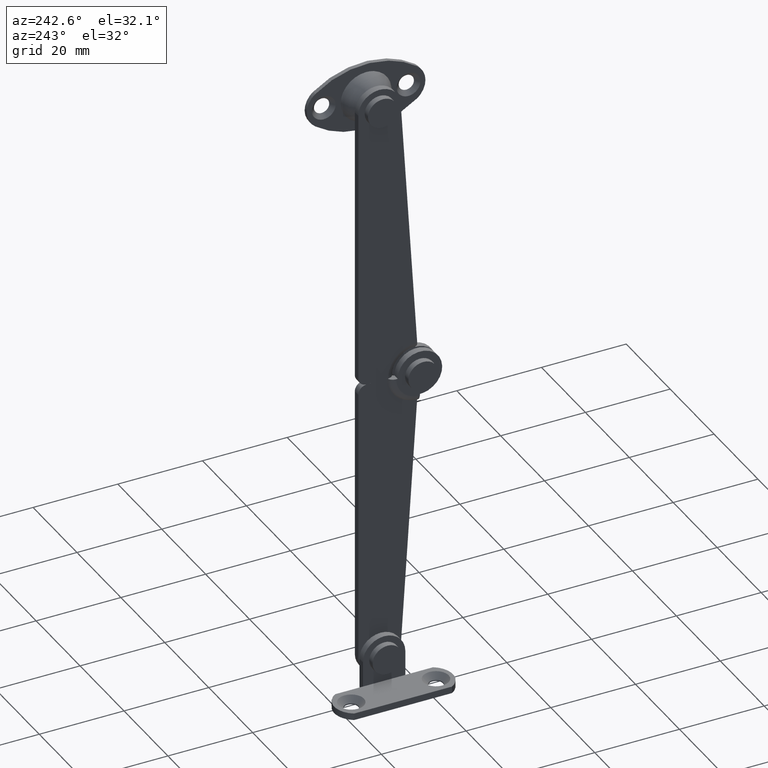
[diagram: clean part render]
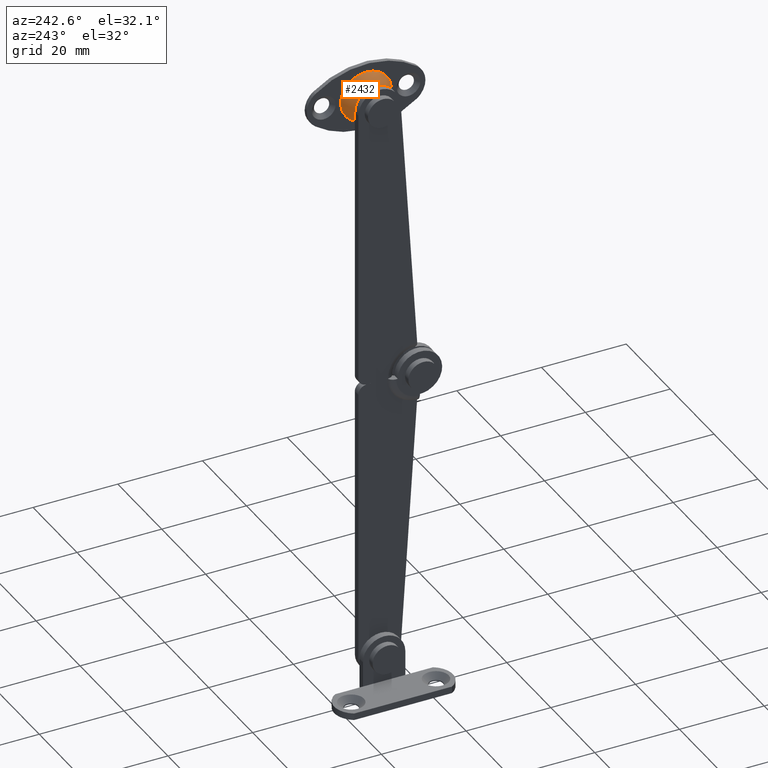
[diagram: same view with one face highlighted and labeled with its STEP entity id]
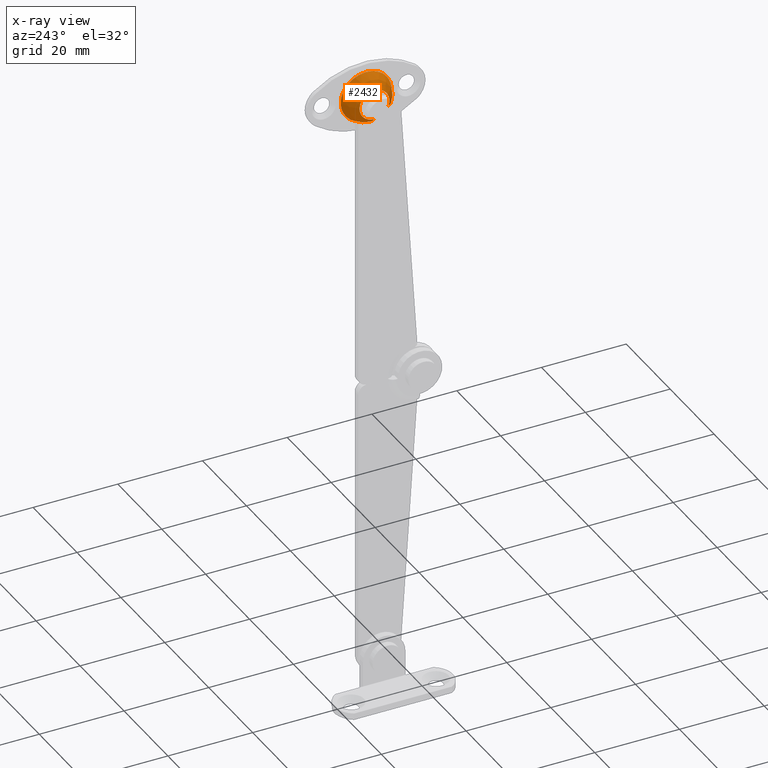
[diagram: x-ray of the same camera — body ghosted, the highlighted face saturated]
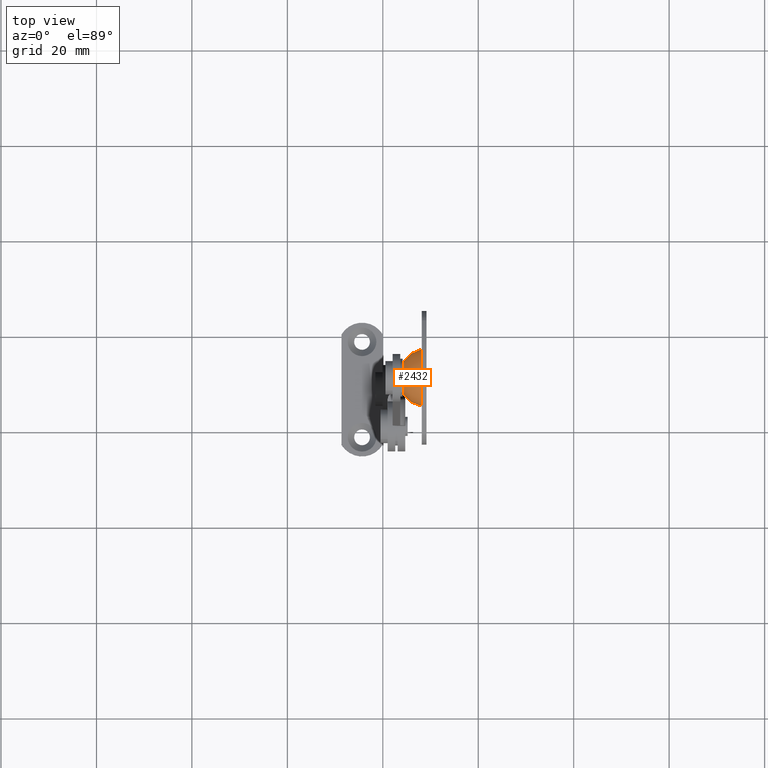
[diagram: same view with one face highlighted and labeled with its STEP entity id]
A machine part, auxiliary view. The second image highlights one B-rep face of the part: STEP entity #2432.
The next image is the same camera in x-ray: the body ghosted, the highlighted face saturated — about 0% of this face is hidden behind the body in this view.
A second angle (top view) of the same face is appended — the face is thin or edge-on in the first view.
In plain terms, the highlighted face is a freeform B-spline surface patch.
Its self-contained STEP definition (entity closure, byte-faithful):
#2044=CARTESIAN_POINT('',(4.847067241244270,11.567381089192910,69.423675135683354));
#2045=VERTEX_POINT('',#2044);
#2053=CARTESIAN_POINT('',(4.847067109778070,9.0,63.469378199189947));
#2054=VERTEX_POINT('',#2053);
#2055=CARTESIAN_POINT('',(4.847067241244270,11.567381089192910,69.423675135683354));
#2056=CARTESIAN_POINT('',(4.847067246586043,11.787808249475081,69.190336971666085));
#2057=CARTESIAN_POINT('',(4.847067253599980,12.114048263777040,68.733273711106165));
#2058=CARTESIAN_POINT('',(4.847067257135690,12.387855421536971,68.055258996449638));
#2059=CARTESIAN_POINT('',(4.847067256459233,12.536297563110899,67.362917509298327));
#2060=CARTESIAN_POINT('',(4.847067250869198,12.544456987597400,66.629479473901682));
#2061=CARTESIAN_POINT('',(4.847067239501903,12.376096141226430,65.895113842037588));
#2062=CARTESIAN_POINT('',(4.847067224964587,12.089664421446439,65.247071616665437));
#2063=CARTESIAN_POINT('',(4.847067207059831,11.684436782156720,64.663608131090172));
#2064=CARTESIAN_POINT('',(4.847067186149777,11.162443497873090,64.181739303383296));
#2065=CARTESIAN_POINT('',(4.847067162793989,10.541829122606240,63.797296589363647));
#2066=CARTESIAN_POINT('',(4.847067137584102,9.834541684625123,63.535453632601033));
#2067=CARTESIAN_POINT('',(4.847067118870384,9.278179922513379,63.469322180209069));
#2068=CARTESIAN_POINT('',(4.847067109778070,9.0,63.469378199189947));
#2069=B_SPLINE_CURVE_WITH_KNOTS('',3,(#2055,#2056,#2057,#2058,#2059,#2060,#2061,#2062,#2063,#2064,#2065,#2066,#2067,#2068),.UNSPECIFIED.,.F.,.U.,(4,1,1,1,1,1,1,1,1,1,1,4),(0.000000474886280,0.962952955897237,1.669137186327656,2.182743242322131,3.081558487141009,3.851904554316324,4.429602329050157,5.200036566947315,5.970428622886469,6.548214059157508,7.382821120317525,8.217364597685977),.UNSPECIFIED.);
#2070=EDGE_CURVE('',#2045,#2054,#2069,.T.);
#2072=CARTESIAN_POINT('',(4.847067109919241,5.697042274380217,65.752643771651066));
#2073=VERTEX_POINT('',#2072);
#2085=CARTESIAN_POINT('',(4.847067243153127,6.889005755780895,69.830083836925581));
#2086=VERTEX_POINT('',#2085);
#2087=CARTESIAN_POINT('',(4.847067109919241,5.697042274380217,65.752643771651066));
#2088=CARTESIAN_POINT('',(4.847067142398618,5.554217062522135,66.130149700536464));
#2089=CARTESIAN_POINT('',(4.847067186171033,5.436522363397607,66.745299264043950));
#2090=CARTESIAN_POINT('',(4.847067227888080,5.497214320773874,67.577445339878025));
#2091=CARTESIAN_POINT('',(4.847067254758253,5.694817651933912,68.338907424093463));
#2092=CARTESIAN_POINT('',(4.847067265072336,6.129270787042115,69.141282815842374));
#2093=CARTESIAN_POINT('',(4.847067253244856,6.622525214430640,69.631452624459570));
#2094=CARTESIAN_POINT('',(4.847067243153127,6.889005755780895,69.830083836925581));
#2095=B_SPLINE_CURVE_WITH_KNOTS('',3,(#2087,#2088,#2089,#2090,#2091,#2092,#2093,#2094),.UNSPECIFIED.,.F.,.U.,(4,1,1,1,1,4),(0.000000166671610,1.210769516828362,1.851794358041712,2.492723524819907,3.561087291289712,4.558183167224900),.UNSPECIFIED.);
#2096=EDGE_CURVE('',#2073,#2086,#2095,.T.);
#2163=CARTESIAN_POINT('',(4.847067243164910,9.0,70.530681698926912));
#2164=VERTEX_POINT('',#2163);
#2165=CARTESIAN_POINT('',(4.847067243153127,6.889005755780895,69.830083836925581));
#2166=CARTESIAN_POINT('',(4.847067243156688,7.172337013773236,70.041599332014485));
#2167=CARTESIAN_POINT('',(4.847067243162728,7.845229676878391,70.400801807118171));
#2168=CARTESIAN_POINT('',(4.847067243164917,8.599280386902679,70.530960580374938));
#2169=CARTESIAN_POINT('',(4.847067243164910,9.0,70.530681698926912));
#2170=B_SPLINE_CURVE_WITH_KNOTS('',3,(#2165,#2166,#2167,#2168,#2169),.UNSPECIFIED.,.F.,.U.,(4,1,4),(0.000000043249270,1.060694661081237,2.262779176446347),.UNSPECIFIED.);
#2171=EDGE_CURVE('',#2086,#2164,#2170,.T.);
#2173=CARTESIAN_POINT('',(4.847067243164910,9.0,70.530681698926912));
#2174=CARTESIAN_POINT('',(4.847067243164943,9.239551208204819,70.530699523880998));
#2175=CARTESIAN_POINT('',(4.847067243064219,9.808489766973345,70.472646374797847));
#2176=CARTESIAN_POINT('',(4.847067242498914,10.719612211004931,70.146820719962690));
#2177=CARTESIAN_POINT('',(4.847067241735734,11.300312158467859,69.706932663452903));
#2178=CARTESIAN_POINT('',(4.847067241244270,11.567381089192910,69.423675135683354));
#2179=B_SPLINE_CURVE_WITH_KNOTS('',3,(#2173,#2174,#2175,#2176,#2177,#2178),.UNSPECIFIED.,.F.,.U.,(4,1,1,4),(0.000000045983691,0.718673931640537,1.706837832005816,2.874695588611174),.UNSPECIFIED.);
#2180=EDGE_CURVE('',#2164,#2045,#2179,.T.);
#2325=CARTESIAN_POINT('',(4.711159916511875,5.874898549640725,65.819812503188913));
#2326=CARTESIAN_POINT('',(6.230115470974028,3.809605187493498,65.039839308471144));
#2327=CARTESIAN_POINT('',(8.863602739466307,3.345828719819024,64.864690721952243));
#2328=CARTESIAN_POINT('',(4.711159916511877,5.659465250170769,66.390258983137201));
#2329=CARTESIAN_POINT('',(6.230115470974031,3.451797961785205,65.987278134815710));
#2330=CARTESIAN_POINT('',(8.863602739466307,2.956050405736577,65.896785889113275));
#2331=CARTESIAN_POINT('',(4.711159916511877,5.659465250170769,67.000029999999995));
#2332=CARTESIAN_POINT('',(6.230115470974030,3.451797961785204,67.000029999999995));
#2333=CARTESIAN_POINT('',(8.863602739466309,2.956050405736577,67.000029999999995));
#2334=CARTESIAN_POINT('',(4.711159916511877,5.659465250170771,70.340564749829227));
#2335=CARTESIAN_POINT('',(6.230115470974029,3.451797961785205,72.548232038214792));
#2336=CARTESIAN_POINT('',(8.863602739466307,2.956050405736577,73.043979594263433));
#2337=CARTESIAN_POINT('',(4.711159916511877,9.0,70.340564749829227));
#2338=CARTESIAN_POINT('',(6.230115470974030,9.0,72.548232038214806));
#2339=CARTESIAN_POINT('',(8.863602739466309,9.0,73.043979594263419));
#2340=CARTESIAN_POINT('',(4.711159916511877,12.340534749829230,70.340564749829227));
#2341=CARTESIAN_POINT('',(6.230115470974029,14.548202038214791,72.548232038214792));
#2342=CARTESIAN_POINT('',(8.863602739466307,15.043949594263418,73.043979594263433));
#2343=CARTESIAN_POINT('',(4.711159916511877,12.340534749829230,67.000029999999995));
#2344=CARTESIAN_POINT('',(6.230115470974030,14.548202038214793,67.000029999999995));
#2345=CARTESIAN_POINT('',(8.863602739466309,15.043949594263418,67.000029999999995));
#2346=CARTESIAN_POINT('',(4.711159916511877,12.340534749829230,63.659495250170764));
#2347=CARTESIAN_POINT('',(6.230115470974029,14.548202038214791,61.451827961785206));
#2348=CARTESIAN_POINT('',(8.863602739466307,15.043949594263418,60.956080405736586));
#2349=CARTESIAN_POINT('',(4.711159916511877,9.0,63.659495250170771));
#2350=CARTESIAN_POINT('',(6.230115470974030,9.0,61.451827961785206));
#2351=CARTESIAN_POINT('',(8.863602739466309,9.0,60.956080405736586));
#2359=(BOUNDED_SURFACE()B_SPLINE_SURFACE(2,2,((#2325,#2328,#2331,#2334,#2337,#2340,#2343,#2346,#2349),(#2326,#2329,#2332,#2335,#2338,#2341,#2344,#2347,#2350),(#2327,#2330,#2333,#2336,#2339,#2342,#2345,#2348,#2351)),.UNSPECIFIED.,.F.,.F.,.U.)B_SPLINE_SURFACE_WITH_KNOTS((3,3),(3,2,2,2,3),(0.0,5.147524105505815),(0.0,2.403346456553542,12.417290025526640,22.431233594499730,32.445177163472820),.UNSPECIFIED.)GEOMETRIC_REPRESENTATION_ITEM()RATIONAL_B_SPLINE_SURFACE(((0.779092009031056,0.810977052085502,0.872294442574820,0.616805315535995,0.872294442574820,0.616805315535995,0.872294442574820,0.616805315535995,0.872294442574820),(0.746769488544029,0.777331703299107,0.836105193212720,0.591215651906003,0.836105193212720,0.591215651906003,0.836105193212720,0.591215651906003,0.836105193212720),(0.837446837367735,0.871720104396219,0.937630233297150,0.663004696209939,0.937630233297150,0.663004696209939,0.937630233297150,0.663004696209939,0.937630233297150)))REPRESENTATION_ITEM('')SURFACE());
#2360=ORIENTED_EDGE('',*,*,#2171,.F.);
#2361=ORIENTED_EDGE('',*,*,#2096,.F.);
#2362=CARTESIAN_POINT('',(8.649994000022437,3.386929346885824,64.880212675237146));
#2363=VERTEX_POINT('',#2362);
#2364=CARTESIAN_POINT('',(4.847067109919241,5.697042274380217,65.752643771651066));
#2365=CARTESIAN_POINT('',(5.048370211739847,5.443356995033076,65.656837664745808));
#2366=CARTESIAN_POINT('',(5.572785779755491,4.880055339587860,65.444102661862132));
#2367=CARTESIAN_POINT('',(6.789108668510526,3.977372773939733,65.103197968111900));
#2368=CARTESIAN_POINT('',(7.919922151641566,3.538853389573795,64.937587904926502));
#2369=CARTESIAN_POINT('',(8.649994000022437,3.386929346885824,64.880212675237146));
#2370=B_SPLINE_CURVE_WITH_KNOTS('',3,(#2364,#2365,#2366,#2367,#2368,#2369),.UNSPECIFIED.,.F.,.U.,(4,1,1,4),(0.000000035951499,1.013184278009021,2.388198364504394,4.631708032114960),.UNSPECIFIED.);
#2371=EDGE_CURVE('',#2073,#2363,#2370,.T.);
#2372=ORIENTED_EDGE('',*,*,#2371,.T.);
#2373=CARTESIAN_POINT('',(8.649994000000108,9.0,73.000045637242678));
#2374=VERTEX_POINT('',#2373);
#2375=CARTESIAN_POINT('',(8.649994000022437,3.386929346885824,64.880212675237146));
#2376=CARTESIAN_POINT('',(8.649994000019881,3.194814658265708,65.388471457394715));
#2377=CARTESIAN_POINT('',(8.649994000014639,2.943216660791182,66.487274071585432));
#2378=CARTESIAN_POINT('',(8.649994000008393,3.025374839549263,68.009900081775314));
#2379=CARTESIAN_POINT('',(8.649994000003494,3.440652357340120,69.373694158415290));
#2380=CARTESIAN_POINT('',(8.649993999999779,4.118784268175634,70.595610926006486));
#2381=CARTESIAN_POINT('',(8.649993999997578,5.079889469446989,71.615480227868616));
#2382=CARTESIAN_POINT('',(8.649993999996909,6.094178558553029,72.281298173140840));
#2383=CARTESIAN_POINT('',(8.649993999997260,7.340053734557944,72.830456382739840));
#2384=CARTESIAN_POINT('',(8.649993999998594,8.305628356148544,73.000603741964269));
#2385=CARTESIAN_POINT('',(8.649994000000108,9.0,73.000045637242678));
#2386=B_SPLINE_CURVE_WITH_KNOTS('',3,(#2375,#2376,#2377,#2378,#2379,#2380,#2381,#2382,#2383,#2384,#2385),.UNSPECIFIED.,.F.,.U.,(4,1,1,1,1,1,1,1,4),(0.000000262273028,1.630053265556576,3.350676797487553,4.527975877229800,5.886261497288723,7.516356038900966,8.693631295466718,9.508660525948983,11.591508305517490),.UNSPECIFIED.);
#2387=EDGE_CURVE('',#2363,#2374,#2386,.T.);
#2388=ORIENTED_EDGE('',*,*,#2387,.T.);
#2389=CARTESIAN_POINT('',(8.649994000000108,15.000015637242321,67.000027953265047));
#2390=VERTEX_POINT('',#2389);
#2391=CARTESIAN_POINT('',(8.649994000000108,9.0,73.000045637242678));
#2392=CARTESIAN_POINT('',(8.649994000001273,9.515429058585937,73.000203564728167));
#2393=CARTESIAN_POINT('',(8.649994000002922,10.374363374282529,72.888614916362158));
#2394=CARTESIAN_POINT('',(8.649994000004906,11.742951274167570,72.399116981749771));
#2395=CARTESIAN_POINT('',(8.649994000005766,12.845166025925410,71.682104852094696));
#2396=CARTESIAN_POINT('',(8.649994000005631,13.790652834269030,70.676405496811398));
#2397=CARTESIAN_POINT('',(8.649994000004901,14.379000343579611,69.734606031903681));
#2398=CARTESIAN_POINT('',(8.649994000002916,14.865155863797980,68.497053708403357));
#2399=CARTESIAN_POINT('',(8.649994000001792,15.000271343503099,67.589111102121834));
#2400=CARTESIAN_POINT('',(8.649994000000108,15.000015637242321,67.000027953265047));
#2401=B_SPLINE_CURVE_WITH_KNOTS('',3,(#2391,#2392,#2393,#2394,#2395,#2396,#2397,#2398,#2399,#2400),.UNSPECIFIED.,.F.,.U.,(4,1,1,1,1,1,1,4),(0.000000185036775,1.546245991990987,2.577116491012993,4.344281694005508,5.448744102363587,6.700485973291992,7.657714641266618,9.424862813922319),.UNSPECIFIED.);
#2402=EDGE_CURVE('',#2374,#2390,#2401,.T.);
#2403=ORIENTED_EDGE('',*,*,#2402,.T.);
#2404=CARTESIAN_POINT('',(8.649993999973248,9.0,61.000014362763316));
#2405=VERTEX_POINT('',#2404);
#2406=CARTESIAN_POINT('',(8.649994000000108,15.000015637242321,67.000027953265047));
#2407=CARTESIAN_POINT('',(8.649993999998964,15.000168749330120,66.484599011201553));
#2408=CARTESIAN_POINT('',(8.649993999996516,14.875886115736520,65.527481858204382));
#2409=CARTESIAN_POINT('',(8.649993999992477,14.369372669336880,64.214201789168527));
#2410=CARTESIAN_POINT('',(8.649993999988432,13.655930133254310,63.146567906474537));
#2411=CARTESIAN_POINT('',(8.649993999984204,12.667491883252881,62.181958022614907));
#2412=CARTESIAN_POINT('',(8.649993999979690,11.477853860134809,61.468869119227122));
#2413=CARTESIAN_POINT('',(8.649993999976381,10.178095442982270,61.074759738174933));
#2414=CARTESIAN_POINT('',(8.649993999973646,9.368155211937587,60.999988997409659));
#2415=CARTESIAN_POINT('',(8.649993999973248,9.0,61.000014362763316));
#2416=B_SPLINE_CURVE_WITH_KNOTS('',3,(#2406,#2407,#2408,#2409,#2410,#2411,#2412,#2413,#2414,#2415),.UNSPECIFIED.,.F.,.U.,(4,1,1,1,1,1,1,4),(0.000000185787968,1.546245614044859,2.871639576806120,4.197044605300071,5.375071623262690,6.995011904250278,8.320385099566954,9.424860506757097),.UNSPECIFIED.);
#2417=EDGE_CURVE('',#2390,#2405,#2416,.T.);
#2418=ORIENTED_EDGE('',*,*,#2417,.T.);
#2419=CARTESIAN_POINT('',(4.847067109778070,9.0,63.469378199189947));
#2420=CARTESIAN_POINT('',(5.220740646340552,9.000000000000007,62.965598930941447));
#2421=CARTESIAN_POINT('',(6.012309389015094,8.999999999999995,62.171379596722687));
#2422=CARTESIAN_POINT('',(7.351621990052047,8.999999999999993,61.384258358850353));
#2423=CARTESIAN_POINT('',(8.226194802194911,9.000000000000004,61.094577270512723));
#2424=CARTESIAN_POINT('',(8.649993999973248,9.0,61.000014362763316));
#2425=B_SPLINE_CURVE_WITH_KNOTS('',3,(#2419,#2420,#2421,#2422,#2423,#2424),.UNSPECIFIED.,.F.,.U.,(4,1,1,4),(0.000000035948963,1.881647987162901,3.329038276227207,4.631708032305919),.UNSPECIFIED.);
#2426=EDGE_CURVE('',#2054,#2405,#2425,.T.);
#2427=ORIENTED_EDGE('',*,*,#2426,.F.);
#2428=ORIENTED_EDGE('',*,*,#2070,.F.);
#2429=ORIENTED_EDGE('',*,*,#2180,.F.);
#2430=EDGE_LOOP('',(#2360,#2361,#2372,#2388,#2403,#2418,#2427,#2428,#2429));
#2431=FACE_OUTER_BOUND('',#2430,.T.);
#2432=ADVANCED_FACE('',(#2431),#2359,.T.);